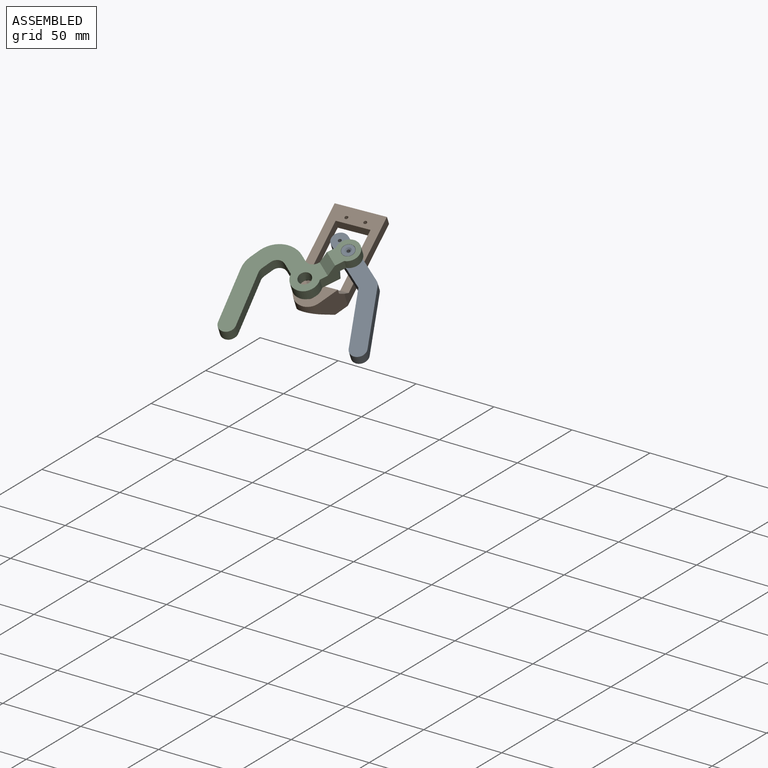
[diagram: assembled view]
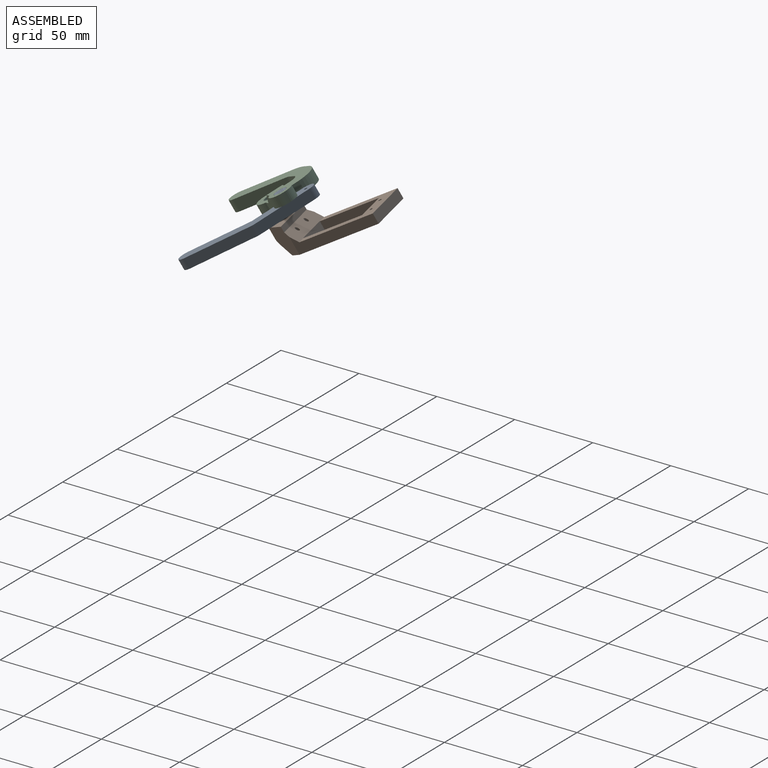
[diagram: assembled view, second angle]
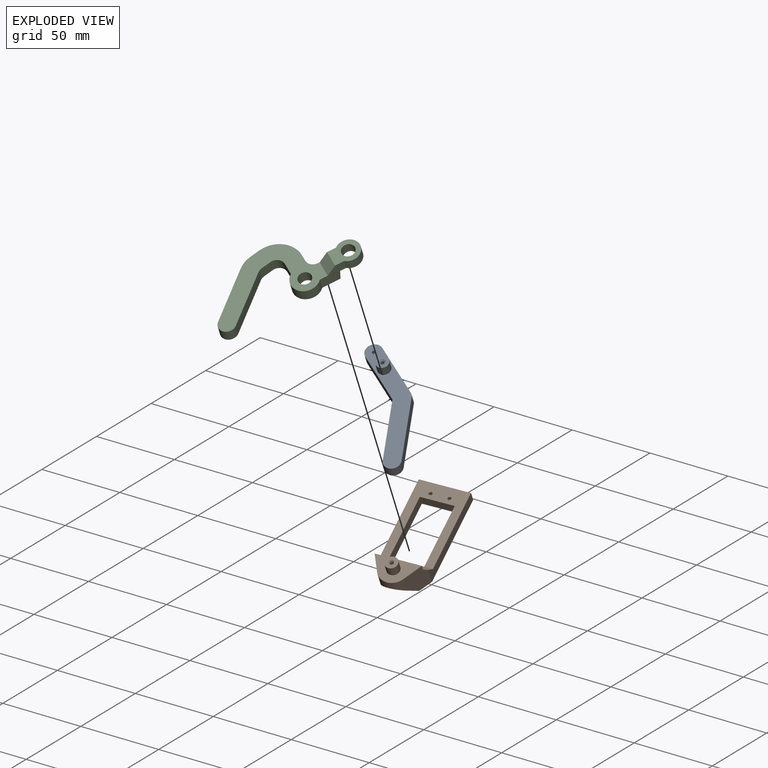
[diagram: exploded view]
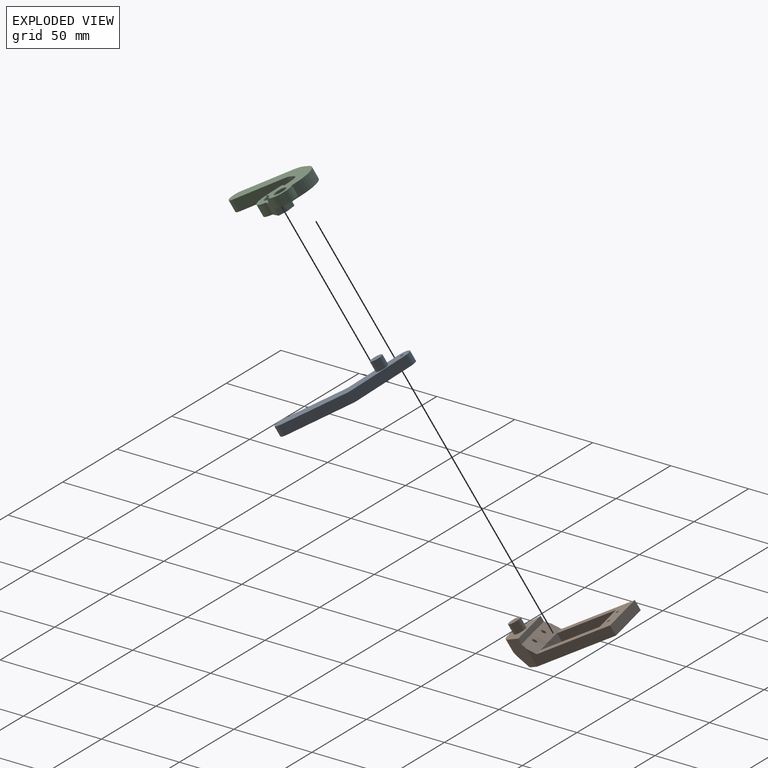
[diagram: exploded view, second angle]
ASSEMBLY  parts=3 mates=2
PART A: 14 faces, bbox 32.9x78.1x12.7 mm
  f0: plane 32.74x6.35mm, normal (1,0,0), area 207.9mm2, adj f1,f6,f7,f8
  f1: plane 32.4x21.86mm, normal (0.83,-0.56,0), area 248.2mm2, adj f0,f2,f7,f8
  f2: cylinder r=5.08mm len=9.29mm, axis (0,0,-1), area 101.3mm2, adj f1,f3,f7,f8
  f3: plane 33.69x22.73mm, normal (-0.83,0.56,0), area 258.1mm2, adj f2,f4,f7,f8
  f4: cylinder r=5.08mm len=6.35mm, axis (0,0,-1), area 19.1mm2, adj f3,f5,f7,f8
  f5: plane 34.29x6.35mm, normal (-1,0,0), area 217.7mm2, adj f4,f6,f7,f8
  f6: cylinder r=5.08mm len=10.16mm, axis (0,0,-1), area 101.3mm2, adj f0,f5,f7,f8
  f7: plane 78.14x32.89mm, normal (0,0,1), area 793.3mm2, adj f0,f1,f2,f3,f4,f5,f6,f9
  f8: plane 78.14x32.89mm, normal (0,0,-1), area 835.6mm2, adj f0,f1,f2,f3,f4,f5,f6,f11
  f9: cylinder r=3.81mm len=7.62mm, axis (0,0,-1), area 152mm2, adj f7,f10
  f10: plane 7.62x7.62mm, normal (0,0,1), area 34.2mm2, adj f9,f12
  f11: cylinder r=1.02mm len=11.95mm, axis (0,0,1), area 76.3mm2, adj f8,f12
  f12: cone r=1.02mm half-angle=50deg, axis (0,0,1), area 10.6mm2, adj f10,f11
  f13: cylinder r=1.02mm len=6.35mm, axis (0,0,1), area 40.5mm2, adj f7,f8
PART B: 24 faces, bbox 31x72.8x24.4 mm
  f0: plane 27.62x15.17mm, normal (0,0,-1), area 232.2mm2, adj f2,f3,f4,f18,f20
  f1: plane 61.94x30.48mm, normal (0,0,1), area 1018.2mm2, adj f2,f4,f5,f6,f7,f8,f9,f10
  f2: plane 17.53x13.27mm, normal (0.87,0.5,0), area 229.9mm2, adj f0,f1,f3,f15,f16,f18,f19
  f3: cylinder r=8.75mm len=15.16mm, axis (0,0,1), area 129.1mm2, adj f0,f2,f4,f19
  f4: plane 17.53x13.27mm, normal (-0.87,0.5,0), area 229.9mm2, adj f0,f1,f3,f5,f16,f18,f19
  f5: plane 54.61x11.02mm, normal (-1,0,0), area 355.9mm2, adj f1,f4,f6,f16,f17
  f6: plane 30.48x6.35mm, normal (0,-1,0), area 193.5mm2, adj f1,f5,f15,f17
  f7: plane 20.32x6.35mm, normal (0,1,0), area 129mm2, adj f1,f8,f10,f17
  f8: plane 40.64x6.48mm, normal (1,0,0), area 258.1mm2, adj f1,f7,f9,f16,f17
  f9: plane 20.32x6.48mm, normal (0,-1,0), area 131.6mm2, adj f1,f8,f10,f16
  f10: plane 40.64x6.48mm, normal (-1,0,0), area 258.1mm2, adj f1,f7,f9,f16,f17
  f11: cylinder r=1.02mm len=12.23mm, axis (0,0,1), area 70.6mm2, adj f1,f16
  f12: cylinder r=1.02mm len=12.23mm, axis (0,0,1), area 70.6mm2, adj f1,f16
  f13: cylinder r=1.02mm len=6.35mm, axis (0,0,1), area 40.5mm2, adj f1,f17
  f14: cylinder r=1.02mm len=6.35mm, axis (0,0,1), area 40.5mm2, adj f1,f17
  f15: plane 54.61x11.02mm, normal (1,0,0), area 355.9mm2, adj f1,f2,f6,f16,f17
  f16: plane 30.99x8.13mm, normal (0,-0.77,-0.64), area 284.2mm2, adj f2,f4,f5,f8,f9,f10,f11,f12
  f17: plane 50.69x30.48mm, normal (0,0,-1), area 715mm2, adj f5,f6,f7,f8,f10,f13,f14,f15
  f18: plane 27.62x3.56mm, normal (0,-1,0), area 98.2mm2, adj f0,f2,f4,f16
  f19: plane 22.52x12.8mm, normal (0,0.77,0.64), area 239.7mm2, adj f1,f2,f3,f4,f22
  f20: cylinder r=3.81mm len=7.62mm, axis (0,0,1), area 152mm2, adj f0,f21
  f21: plane 7.62x7.62mm, normal (0,0,-1), area 37.7mm2, adj f20,f23
  f22: cylinder r=1.02mm len=22.58mm, axis (0,0,-1), area 136.6mm2, adj f19,f23
  f23: cone r=1.02mm half-angle=41deg, axis (0,0,-1), area 7.1mm2, adj f21,f22
PART C: 27 faces, bbox 38.7x86.6x12.7 mm
  f0: plane 1.53x0.64mm, normal (0,-0.71,0.71), area 0.7mm2, adj f7,f15,f25
  f1: plane 1.53x0.64mm, normal (0,-0.71,0.71), area 0.7mm2, adj f8,f15,f26
  f2: plane 7.84x7.36mm, normal (0,1,0), area 57.7mm2, adj f12,f13,f19,f21
  f3: cylinder r=5.08mm len=8.7mm, axis (0,0,-1), area 117.4mm2, adj f4,f10,f12,f13
  f4: plane 24.99x24.56mm, normal (-0.71,0.7,0), area 257.9mm2, adj f3,f12,f13,f16
  f5: plane 7.36x5.59mm, normal (-0.98,0.19,0), area 41.9mm2, adj f12,f13,f16,f17
  f6: plane 7.36x4.19mm, normal (0,-1,0), area 30.8mm2, adj f12,f13,f17,f18
  f7: plane 12.7x11.72mm, normal (-1,0,0), area 100mm2, adj f0,f11,f12,f13,f14,f15,f18,f22
  f8: plane 15.37x12.7mm, normal (1,0,0), area 126.9mm2, adj f1,f11,f12,f13,f14,f15,f21,f22
  f9: plane 7.36x5.59mm, normal (0.98,-0.19,0), area 41.9mm2, adj f12,f13,f19,f20
  f10: plane 24.99x24.56mm, normal (0.71,-0.7,0), area 257.9mm2, adj f3,f12,f13,f20
  f11: plane 17.15x13.97mm, normal (0,0,-1), area 143.7mm2, adj f7,f8,f14,f22,f24
  f12: plane 72.31x38.72mm, normal (0,0,1), area 1041.9mm2, adj f2,f3,f4,f5,f6,f7,f8,f9
  f13: plane 64.12x38.72mm, normal (0,0,-1), area 969.4mm2, adj f2,f3,f4,f5,f6,f7,f8,f9
  f14: plane 10.16x5.34mm, normal (0,0.71,-0.71), area 76.7mm2, adj f7,f8,f11,f13
  f15: plane 15.76x13.97mm, normal (0,0,1), area 124.5mm2, adj f0,f1,f7,f8,f22,f24,f25,f26
  f16: cylinder r=15.24mm len=7.77mm, axis (0,0,-1), area 65.6mm2, adj f4,f5,f12,f13
  f17: cylinder r=15.24mm len=18.15mm, axis (0,0,-1), area 197.7mm2, adj f5,f6,f12,f13
  f18: cylinder r=5.08mm len=7.36mm, axis (0,0,1), area 58.7mm2, adj f6,f7,f12,f13
  f19: cylinder r=5.08mm len=7.36mm, axis (0,0,1), area 65.9mm2, adj f2,f9,f12,f13
  f20: cylinder r=5.08mm len=7.36mm, axis (0,0,1), area 21.9mm2, adj f9,f10,f12,f13
  f21: cylinder r=8.26mm len=14.76mm, axis (0,0,1), area 205.7mm2, adj f2,f8,f12,f13
  f22: cylinder r=6.99mm len=13.97mm, axis (0,0,1), area 206.4mm2, adj f7,f8,f11,f15
  f23: cylinder r=3.94mm len=7.87mm, axis (0,0,-1), area 182mm2, adj f12,f13
  f24: cylinder r=3.94mm len=7.87mm, axis (0,0,-1), area 157.1mm2, adj f11,f15
  f25: plane 6.35x5.08mm, normal (-0.38,-0.92,0), area 34.4mm2, adj f0,f7,f12,f15,f26
  f26: plane 6.35x5.08mm, normal (0.38,-0.92,0), area 34.4mm2, adj f1,f8,f12,f15,f25
PLACE A rot(axis=(0.07,0.3,-0.95),123.7deg) t=(-32.95,52.22,-55.64)mm
PLACE B rot(axis=(-1,-0.08,0.05),149.4deg) t=(-76.01,74.8,-63.41)mm
PLACE C rot(axis=(-0.95,0.28,0.14),153.5deg) t=(-53.43,57.13,-34.61)mm
MATE revolute C.f22 <-> A.f9  axis (0.14,-0.5,0.86) through (-53.87,58.72,-37.32)mm
MATE revolute B.f3 <-> C.f21  axis (-0.14,0.5,-0.86) through (-70.14,43.44,-54.76)mm
